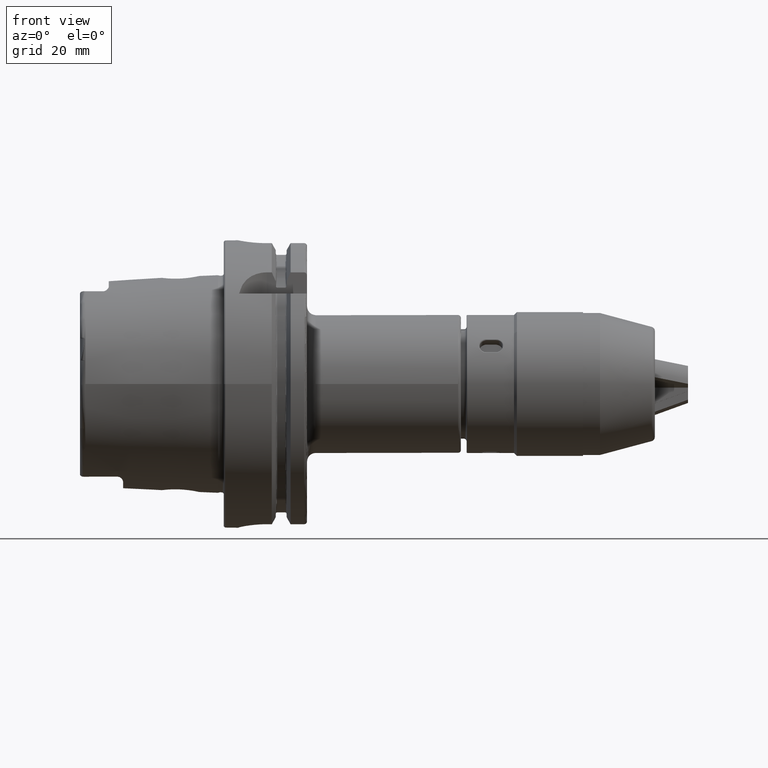
[diagram: clean part render]
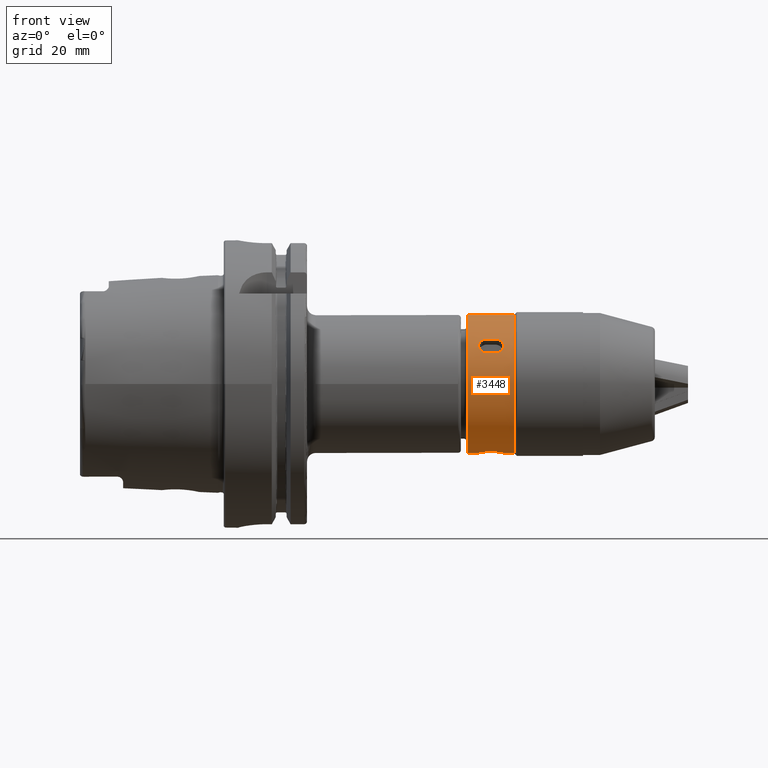
[diagram: same view with one face highlighted and labeled with its STEP entity id]
A machine part, front view. The second image highlights one B-rep face of the part: STEP entity #3448.
In plain terms, the highlighted cylindrical surface (bore or boss wall) has radius 24 mm, axis along (1, -0, -0).
Its self-contained STEP definition (entity closure, byte-faithful):
#140=B_SPLINE_CURVE_WITH_KNOTS('',3,(#6761,#6762,#6763,#6764,#6765,#6766,
#6767,#6768,#6769,#6770,#6771,#6772,#6773,#6774,#6775,#6776,#6777,#6778),
 .UNSPECIFIED.,.F.,.F.,(4,2,2,2,2,2,2,2,4),(0.00440892581885731,0.00495953149996009,
0.00551013718106286,0.00606074286216564,0.00661134854326842,0.0071619542243712,
0.00771255990547397,0.00826316558657675,0.00881377126767952),
 .UNSPECIFIED.);
#141=B_SPLINE_CURVE_WITH_KNOTS('',3,(#6780,#6781,#6782,#6783,#6784,#6785,
#6786,#6787,#6788,#6789,#6790,#6791,#6792,#6793,#6794,#6795,#6796,#6797,
#6798,#6799,#6800,#6801,#6802,#6803,#6804,#6805,#6806,#6807,#6808,#6809,
#6810,#6811,#6812,#6813,#6814,#6815,#6816,#6817,#6818,#6819,#6820,#6821,
#6822,#6823,#6824,#6825,#6826,#6827,#6828,#6829,#6830,#6831,#6832,#6833,
#6834,#6835,#6836,#6837,#6838,#6839,#6840),.UNSPECIFIED.,.F.,.F.,(4,3,3,
3,3,3,3,3,3,3,3,3,3,3,3,3,3,3,3,3,4),(0.,0.000547517435391667,0.000551115727357164,
0.000946703184153695,0.00109552508824886,0.00110223145471433,0.00164452387624054,
0.00165334718207149,0.00207315003302939,0.00219472326330774,0.00220446290942865,
0.00258200978068174,0.00274626147636323,0.00275557863678582,0.0031373182863236,
0.00329900945385223,0.00330669436414298,0.00385271726613962,0.00385781009150015,
0.00440688062733961,0.00440892581885732),.UNSPECIFIED.);
#142=B_SPLINE_CURVE_WITH_KNOTS('',3,(#6841,#6842,#6843,#6844,#6845,#6846,
#6847,#6848,#6849,#6850,#6851,#6852,#6853,#6854,#6855,#6856,#6857,#6858),
 .UNSPECIFIED.,.F.,.F.,(4,2,2,2,2,2,2,2,4),(0.00440892581885732,0.00495953149996009,
0.00551013718106287,0.00606074286216565,0.00661134854326842,0.0071619542243712,
0.00771255990547398,0.00826316558657676,0.00881377126767953),
 .UNSPECIFIED.);
#143=B_SPLINE_CURVE_WITH_KNOTS('',3,(#6859,#6860,#6861,#6862,#6863,#6864,
#6865,#6866,#6867,#6868,#6869,#6870,#6871,#6872,#6873,#6874,#6875,#6876,
#6877,#6878,#6879,#6880,#6881,#6882,#6883,#6884,#6885,#6886,#6887,#6888,
#6889,#6890,#6891,#6892,#6893,#6894,#6895,#6896,#6897,#6898,#6899,#6900,
#6901,#6902,#6903,#6904,#6905,#6906,#6907,#6908,#6909,#6910,#6911,#6912,
#6913,#6914,#6915,#6916,#6917,#6918,#6919),.UNSPECIFIED.,.F.,.F.,(4,3,3,
3,3,3,3,3,3,3,3,3,3,3,3,3,3,3,3,3,4),(0.,0.000547517435391673,0.000551115727357164,
0.000946703184115908,0.00109552508824886,0.00110223145471433,0.00164452387624054,
0.00165334718207149,0.00207315003280708,0.00219472326330774,0.00220446290942866,
0.00258200978115564,0.00274626147636323,0.00275557863678582,0.00313731828656481,
0.00329900945385223,0.00330669436414298,0.00385271726613962,0.00385781009150015,
0.00440688062733961,0.00440892581885731),.UNSPECIFIED.);
#144=B_SPLINE_CURVE_WITH_KNOTS('',3,(#6922,#6923,#6924,#6925,#6926,#6927,
#6928,#6929,#6930,#6931,#6932,#6933,#6934,#6935,#6936,#6937,#6938,#6939,
#6940,#6941,#6942,#6943,#6944,#6945,#6946,#6947,#6948,#6949,#6950,#6951,
#6952,#6953,#6954,#6955),.UNSPECIFIED.,.F.,.F.,(4,2,2,2,2,2,2,2,2,2,2,2,
2,2,2,2,4),(0.,0.000550860704229969,0.00110172140845994,0.00165258211268991,
0.00220344281691987,0.00275430352114984,0.00330516422537981,0.00385602492960978,
0.00440688563383975,0.00495774633806972,0.00550860704229969,0.00605946774652966,
0.00661032845075963,0.0071611891549896,0.00771204985921958,0.00826291056344955,
0.00881377126767953),.UNSPECIFIED.);
#145=B_SPLINE_CURVE_WITH_KNOTS('',3,(#6959,#6960,#6961,#6962,#6963,#6964,
#6965,#6966,#6967,#6968,#6969,#6970,#6971,#6972,#6973,#6974,#6975,#6976,
#6977,#6978,#6979,#6980,#6981,#6982,#6983,#6984,#6985,#6986,#6987,#6988,
#6989,#6990,#6991,#6992),.UNSPECIFIED.,.F.,.F.,(4,2,2,2,2,2,2,2,2,2,2,2,
2,2,2,2,4),(0.,0.00055086070422997,0.00110172140845994,0.00165258211268991,
0.00220344281691988,0.00275430352114985,0.00330516422537982,0.00385602492960979,
0.00440688563383976,0.00495774633806973,0.0055086070422997,0.00605946774652967,
0.00661032845075964,0.00716118915498961,0.00771204985921958,0.00826291056344956,
0.00881377126767953),.UNSPECIFIED.);
#146=B_SPLINE_CURVE_WITH_KNOTS('',3,(#6998,#6999,#7000,#7001,#7002,#7003,
#7004,#7005,#7006,#7007,#7008,#7009,#7010,#7011,#7012,#7013,#7014,#7015,
#7016,#7017,#7018,#7019,#7020,#7021,#7022,#7023,#7024,#7025,#7026,#7027,
#7028,#7029,#7030,#7031),.UNSPECIFIED.,.F.,.F.,(4,2,2,2,2,2,2,2,2,2,2,2,
2,2,2,2,4),(0.,0.00055086070422997,0.00110172140845994,0.00165258211268991,
0.00220344281691988,0.00275430352114985,0.00330516422537982,0.00385602492960979,
0.00440688563383976,0.00495774633806973,0.0055086070422997,0.00605946774652968,
0.00661032845075965,0.00716118915498962,0.00771204985921959,0.00826291056344956,
0.00881377126767953),.UNSPECIFIED.);
#147=B_SPLINE_CURVE_WITH_KNOTS('',3,(#7034,#7035,#7036,#7037,#7038,#7039,
#7040,#7041,#7042,#7043,#7044,#7045,#7046,#7047,#7048,#7049,#7050,#7051,
#7052,#7053,#7054,#7055,#7056,#7057,#7058,#7059,#7060,#7061,#7062,#7063,
#7064,#7065,#7066,#7067),.UNSPECIFIED.,.F.,.F.,(4,2,2,2,2,2,2,2,2,2,2,2,
2,2,2,2,4),(0.,0.00055086070422997,0.00110172140845994,0.00165258211268991,
0.00220344281691988,0.00275430352114985,0.00330516422537982,0.00385602492960979,
0.00440688563383976,0.00495774633806973,0.0055086070422997,0.00605946774652967,
0.00661032845075964,0.00716118915498961,0.00771204985921958,0.00826291056344955,
0.00881377126767952),.UNSPECIFIED.);
#201=FACE_BOUND('',#1170,.T.);
#202=FACE_BOUND('',#1171,.T.);
#203=FACE_BOUND('',#1172,.T.);
#407=LINE('',#6717,#635);
#410=LINE('',#6735,#638);
#413=LINE('',#6759,#641);
#414=LINE('',#6957,#642);
#415=LINE('',#6993,#643);
#416=LINE('',#6996,#644);
#417=LINE('',#7033,#645);
#635=VECTOR('',#4798,1000.);
#638=VECTOR('',#4815,1000.);
#641=VECTOR('',#4846,24.);
#642=VECTOR('',#4847,1000.);
#643=VECTOR('',#4848,1000.);
#644=VECTOR('',#4849,1000.);
#645=VECTOR('',#4850,1000.);
#795=CYLINDRICAL_SURFACE('',#4000,24.);
#949=FACE_OUTER_BOUND('',#1169,.T.);
#1169=EDGE_LOOP('',(#2960,#2961,#2962,#2963));
#1170=EDGE_LOOP('',(#2964,#2965,#2966,#2967,#2968,#2969));
#1171=EDGE_LOOP('',(#2970,#2971,#2972,#2973));
#1172=EDGE_LOOP('',(#2974,#2975,#2976,#2977));
#1404=CIRCLE('',#3997,24.);
#1407=CIRCLE('',#4001,24.);
#1645=VERTEX_POINT('',#6714);
#1646=VERTEX_POINT('',#6716);
#1650=VERTEX_POINT('',#6725);
#1654=VERTEX_POINT('',#6733);
#1659=VERTEX_POINT('',#6751);
#1661=VERTEX_POINT('',#6757);
#1662=VERTEX_POINT('',#6760);
#1663=VERTEX_POINT('',#6779);
#1664=VERTEX_POINT('',#6920);
#1665=VERTEX_POINT('',#6921);
#1666=VERTEX_POINT('',#6956);
#1667=VERTEX_POINT('',#6958);
#1668=VERTEX_POINT('',#6994);
#1669=VERTEX_POINT('',#6995);
#1670=VERTEX_POINT('',#6997);
#1671=VERTEX_POINT('',#7032);
#2091=EDGE_CURVE('',#1646,#1645,#407,.T.);
#2100=EDGE_CURVE('',#1650,#1654,#410,.T.);
#2108=EDGE_CURVE('',#1659,#1659,#1404,.T.);
#2111=EDGE_CURVE('',#1661,#1661,#1407,.T.);
#2112=EDGE_CURVE('',#1661,#1659,#413,.T.);
#2113=EDGE_CURVE('',#1662,#1650,#140,.T.);
#2114=EDGE_CURVE('',#1654,#1663,#141,.T.);
#2115=EDGE_CURVE('',#1663,#1646,#142,.T.);
#2116=EDGE_CURVE('',#1645,#1662,#143,.T.);
#2117=EDGE_CURVE('',#1664,#1665,#144,.T.);
#2118=EDGE_CURVE('',#1665,#1666,#414,.T.);
#2119=EDGE_CURVE('',#1666,#1667,#145,.T.);
#2120=EDGE_CURVE('',#1667,#1664,#415,.T.);
#2121=EDGE_CURVE('',#1668,#1669,#416,.T.);
#2122=EDGE_CURVE('',#1669,#1670,#146,.T.);
#2123=EDGE_CURVE('',#1670,#1671,#417,.T.);
#2124=EDGE_CURVE('',#1671,#1668,#147,.T.);
#2960=ORIENTED_EDGE('',*,*,#2111,.F.);
#2961=ORIENTED_EDGE('',*,*,#2112,.T.);
#2962=ORIENTED_EDGE('',*,*,#2108,.T.);
#2963=ORIENTED_EDGE('',*,*,#2112,.F.);
#2964=ORIENTED_EDGE('',*,*,#2113,.T.);
#2965=ORIENTED_EDGE('',*,*,#2100,.T.);
#2966=ORIENTED_EDGE('',*,*,#2114,.T.);
#2967=ORIENTED_EDGE('',*,*,#2115,.T.);
#2968=ORIENTED_EDGE('',*,*,#2091,.T.);
#2969=ORIENTED_EDGE('',*,*,#2116,.T.);
#2970=ORIENTED_EDGE('',*,*,#2117,.T.);
#2971=ORIENTED_EDGE('',*,*,#2118,.T.);
#2972=ORIENTED_EDGE('',*,*,#2119,.T.);
#2973=ORIENTED_EDGE('',*,*,#2120,.T.);
#2974=ORIENTED_EDGE('',*,*,#2121,.T.);
#2975=ORIENTED_EDGE('',*,*,#2122,.T.);
#2976=ORIENTED_EDGE('',*,*,#2123,.T.);
#2977=ORIENTED_EDGE('',*,*,#2124,.T.);
#3448=ADVANCED_FACE('',(#949,#201,#202,#203),#795,.T.);
#3997=AXIS2_PLACEMENT_3D('',#6752,#4836,#4837);
#4000=AXIS2_PLACEMENT_3D('',#6756,#4842,#4843);
#4001=AXIS2_PLACEMENT_3D('',#6758,#4844,#4845);
#4798=DIRECTION('',(0.,-1.,0.));
#4815=DIRECTION('',(0.,1.,0.));
#4836=DIRECTION('center_axis',(0.,1.,0.));
#4837=DIRECTION('ref_axis',(0.,0.,1.));
#4842=DIRECTION('center_axis',(0.,1.,0.));
#4843=DIRECTION('ref_axis',(0.,0.,1.));
#4844=DIRECTION('center_axis',(0.,1.,0.));
#4845=DIRECTION('ref_axis',(0.,0.,1.));
#4846=DIRECTION('',(0.,-1.,0.));
#4847=DIRECTION('',(0.,-1.,0.));
#4848=DIRECTION('',(0.,1.,0.));
#4849=DIRECTION('',(0.,1.,0.));
#4850=DIRECTION('',(0.,-1.,0.));
#6714=CARTESIAN_POINT('',(2.83544303797468,-21.,23.8319168926547));
#6716=CARTESIAN_POINT('',(2.83544303797468,-18.,23.8319168926547));
#6717=CARTESIAN_POINT('',(2.83544303797467,0.,23.8319168926547));
#6725=CARTESIAN_POINT('',(-2.83544303797468,-21.,23.8319168926547));
#6733=CARTESIAN_POINT('',(-2.83544303797468,-18.,23.8319168926547));
#6735=CARTESIAN_POINT('',(-2.83544303797468,0.,23.8319168926547));
#6751=CARTESIAN_POINT('',(-2.93915231795365E-15,-27.7,-24.));
#6752=CARTESIAN_POINT('Origin',(0.,-27.7,0.));
#6756=CARTESIAN_POINT('Origin',(0.,0.,0.));
#6757=CARTESIAN_POINT('',(-2.93915231795365E-15,-11.5,-24.));
#6758=CARTESIAN_POINT('Origin',(0.,-11.5,0.));
#6759=CARTESIAN_POINT('',(-2.93915231795365E-15,0.,-24.));
#6760=CARTESIAN_POINT('',(7.05606588451342E-13,-23.799999991578,23.999999998587));
#6761=CARTESIAN_POINT('Ctrl Pts',(7.01516389887666E-13,-23.8,24.));
#6762=CARTESIAN_POINT('Ctrl Pts',(-0.183866423147814,-23.8,24.));
#6763=CARTESIAN_POINT('Ctrl Pts',(-0.370567700895003,-23.7819444709288,
23.9978203234072));
#6764=CARTESIAN_POINT('Ctrl Pts',(-0.732138923881349,-23.7111645898068,
23.989511735165));
#6765=CARTESIAN_POINT('Ctrl Pts',(-0.908042239445636,-23.6588119425311,
23.9834266527617));
#6766=CARTESIAN_POINT('Ctrl Pts',(-1.25001008675534,-23.5198473644258,23.9680364131071));
#6767=CARTESIAN_POINT('Ctrl Pts',(-1.41540307877182,-23.4329940637592,23.9587198298162));
#6768=CARTESIAN_POINT('Ctrl Pts',(-1.72213313630015,-23.2318137233607,23.9386273461926));
#6769=CARTESIAN_POINT('Ctrl Pts',(-1.86538163369627,-23.1168127133124,23.9277679135411));
#6770=CARTESIAN_POINT('Ctrl Pts',(-2.13073502481787,-22.8565712615983,23.905599641457));
#6771=CARTESIAN_POINT('Ctrl Pts',(-2.2485377543457,-22.7155269911367,23.8946615713535));
#6772=CARTESIAN_POINT('Ctrl Pts',(-2.45513094641273,-22.4125964529844,23.8743189573693));
#6773=CARTESIAN_POINT('Ctrl Pts',(-2.54471445470924,-22.2486989218002,23.8648204775907));
#6774=CARTESIAN_POINT('Ctrl Pts',(-2.68846341365019,-21.9086661555868,23.8490543325538));
#6775=CARTESIAN_POINT('Ctrl Pts',(-2.74277053012392,-21.733460675799,23.8427889102428));
#6776=CARTESIAN_POINT('Ctrl Pts',(-2.81638520794912,-21.3726876007205,23.8342054107067));
#6777=CARTESIAN_POINT('Ctrl Pts',(-2.83544303797468,-21.1862564637837,23.8319168926547));
#6778=CARTESIAN_POINT('Ctrl Pts',(-2.83544303797468,-21.,23.8319168926547));
#6779=CARTESIAN_POINT('',(-7.05148970858741E-13,-15.200000008422,23.999999998587));
#6780=CARTESIAN_POINT('Ctrl Pts',(-2.83544303797468,-18.,23.8319168926547));
#6781=CARTESIAN_POINT('Ctrl Pts',(-2.83544303386902,-17.8147869842147,23.8319168931432));
#6782=CARTESIAN_POINT('Ctrl Pts',(-2.81700829443057,-17.6327577279024,23.8341305723499));
#6783=CARTESIAN_POINT('Ctrl Pts',(-2.78097769906552,-17.4538417625587,23.8383338980924));
#6784=CARTESIAN_POINT('Ctrl Pts',(-2.78074090550712,-17.4526659244228,23.8383615224058));
#6785=CARTESIAN_POINT('Ctrl Pts',(-2.78050331379216,-17.4514901396681,23.8383892369384));
#6786=CARTESIAN_POINT('Ctrl Pts',(-2.78026492449431,-17.450314410365,23.8384170415226));
#6787=CARTESIAN_POINT('Ctrl Pts',(-2.75405698557054,-17.3210575936918,23.8414738098084));
#6788=CARTESIAN_POINT('Ctrl Pts',(-2.71818748151992,-17.1924061478664,23.845621440319));
#6789=CARTESIAN_POINT('Ctrl Pts',(-2.67342395015235,-17.0671798365421,23.8506370322333));
#6790=CARTESIAN_POINT('Ctrl Pts',(-2.65658369433106,-17.0200690958604,23.8525239220374));
#6791=CARTESIAN_POINT('Ctrl Pts',(-2.63848513916586,-16.9734429159499,23.854533609194));
#6792=CARTESIAN_POINT('Ctrl Pts',(-2.61917075444562,-16.927450312297,23.8566540939573));
#6793=CARTESIAN_POINT('Ctrl Pts',(-2.6183003896779,-16.9253777460529,23.8567496494334));
#6794=CARTESIAN_POINT('Ctrl Pts',(-2.61742765795449,-16.9233065167706,23.8568454188438));
#6795=CARTESIAN_POINT('Ctrl Pts',(-2.6165525598994,-16.9212366245398,23.8569414011673));
#6796=CARTESIAN_POINT('Ctrl Pts',(-2.54579009175679,-16.7538603148966,23.8647027555298));
#6797=CARTESIAN_POINT('Ctrl Pts',(-2.45952880693523,-16.5951857155035,23.8738584106844));
#6798=CARTESIAN_POINT('Ctrl Pts',(-2.35805465662742,-16.4451093816987,23.8838769514742));
#6799=CARTESIAN_POINT('Ctrl Pts',(-2.35640363325597,-16.4426675821482,23.884039956978));
#6800=CARTESIAN_POINT('Ctrl Pts',(-2.35474832575485,-16.4402279434639,23.8842032087297));
#6801=CARTESIAN_POINT('Ctrl Pts',(-2.35308875869436,-16.4377904933369,23.8843667019509));
#6802=CARTESIAN_POINT('Ctrl Pts',(-2.27412844646043,-16.3218193899865,23.8921455233685));
#6803=CARTESIAN_POINT('Ctrl Pts',(-2.18548056734201,-16.2107615826124,23.900475078787));
#6804=CARTESIAN_POINT('Ctrl Pts',(-2.08977739681336,-16.1076154886989,23.9088426238792));
#6805=CARTESIAN_POINT('Ctrl Pts',(-2.06206214056272,-16.0777447915395,23.9112658315445));
#6806=CARTESIAN_POINT('Ctrl Pts',(-2.03375519507913,-16.0485372980449,23.913692251355));
#6807=CARTESIAN_POINT('Ctrl Pts',(-2.00492043735027,-16.0200649665045,23.9161095088488));
#6808=CARTESIAN_POINT('Ctrl Pts',(-2.00261038656344,-16.0177839509158,23.916303163591));
#6809=CARTESIAN_POINT('Ctrl Pts',(-2.00029665580118,-16.0155071100017,23.9164967932039));
#6810=CARTESIAN_POINT('Ctrl Pts',(-1.99797924423389,-16.0132344454203,23.9166903942008));
#6811=CARTESIAN_POINT('Ctrl Pts',(-1.90814728568287,-15.9251370554853,23.924195127919));
#6812=CARTESIAN_POINT('Ctrl Pts',(-1.81281013217366,-15.8433287430144,23.9316548399621));
#6813=CARTESIAN_POINT('Ctrl Pts',(-1.71180767483478,-15.7678206627238,23.9388759933496));
#6814=CARTESIAN_POINT('Ctrl Pts',(-1.66786657467192,-15.7349708865245,23.9420175547794));
#6815=CARTESIAN_POINT('Ctrl Pts',(-1.62285277948165,-15.7033140441285,23.9451139783465));
#6816=CARTESIAN_POINT('Ctrl Pts',(-1.57675107727872,-15.6728533876945,23.948149323905));
#6817=CARTESIAN_POINT('Ctrl Pts',(-1.57413596299697,-15.6711255101137,23.9483215035674));
#6818=CARTESIAN_POINT('Ctrl Pts',(-1.57151804458181,-15.6694020399594,23.9484934309083));
#6819=CARTESIAN_POINT('Ctrl Pts',(-1.56889734051203,-15.6676829840073,23.9486651026328));
#6820=CARTESIAN_POINT('Ctrl Pts',(-1.46152271049975,-15.5972503857761,23.9556987803805));
#6821=CARTESIAN_POINT('Ctrl Pts',(-1.34961846755318,-15.5343208980356,23.9622939549729));
#6822=CARTESIAN_POINT('Ctrl Pts',(-1.23448601668462,-15.4793222743515,23.9682267412182));
#6823=CARTESIAN_POINT('Ctrl Pts',(-1.18572005689,-15.4560268380857,23.9707396558077));
#6824=CARTESIAN_POINT('Ctrl Pts',(-1.13637442864883,-15.434154679546,23.9731337358028));
#6825=CARTESIAN_POINT('Ctrl Pts',(-1.08654614664666,-15.4137403418957,23.9753919148576));
#6826=CARTESIAN_POINT('Ctrl Pts',(-1.08417789188678,-15.4127700826299,23.9754992423247));
#6827=CARTESIAN_POINT('Ctrl Pts',(-1.08180805991911,-15.4118029181438,23.9756062844196));
#6828=CARTESIAN_POINT('Ctrl Pts',(-1.07943666106762,-15.4108388528851,23.9757130397105));
#6829=CARTESIAN_POINT('Ctrl Pts',(-0.910945678910019,-15.3423407585211,
23.9832981424007));
#6830=CARTESIAN_POINT('Ctrl Pts',(-0.734549426677008,-15.2894979438591,
23.9894348068281));
#6831=CARTESIAN_POINT('Ctrl Pts',(-0.554194616618907,-15.254004734812,23.9936005702921));
#6832=CARTESIAN_POINT('Ctrl Pts',(-0.552512424265438,-15.253673685117,23.9936394249001));
#6833=CARTESIAN_POINT('Ctrl Pts',(-0.550830155028188,-15.253344172514,23.9936781042938));
#6834=CARTESIAN_POINT('Ctrl Pts',(-0.549147808944167,-15.2530161965982,
23.9937166084259));
#6835=CARTESIAN_POINT('Ctrl Pts',(-0.367769772112267,-15.2176562737546,
23.9978678374422));
#6836=CARTESIAN_POINT('Ctrl Pts',(-0.185381556290337,-15.2001345411298,
23.9999842623105));
#6837=CARTESIAN_POINT('Ctrl Pts',(-0.00204876506993331,-15.2000007641736,
23.9999999125534));
#6838=CARTESIAN_POINT('Ctrl Pts',(-0.00136588255293883,-15.2000002658779,
23.9999999708478));
#6839=CARTESIAN_POINT('Ctrl Pts',(-0.000682960710411145,-15.2000000167815,
23.999999999051));
#6840=CARTESIAN_POINT('Ctrl Pts',(-7.08884340117066E-13,-15.200000016844,
23.9999999971741));
#6841=CARTESIAN_POINT('Ctrl Pts',(-7.01415390534001E-13,-15.2,24.));
#6842=CARTESIAN_POINT('Ctrl Pts',(0.183866423147814,-15.1999999999999,24.));
#6843=CARTESIAN_POINT('Ctrl Pts',(0.370567700895012,-15.2180555290712,23.9978203234072));
#6844=CARTESIAN_POINT('Ctrl Pts',(0.732138923881357,-15.2888354101932,23.989511735165));
#6845=CARTESIAN_POINT('Ctrl Pts',(0.908042239445644,-15.3411880574688,23.9834266527617));
#6846=CARTESIAN_POINT('Ctrl Pts',(1.25001008675535,-15.4801526355742,23.9680364131071));
#6847=CARTESIAN_POINT('Ctrl Pts',(1.41540307877184,-15.5670059362408,23.9587198298161));
#6848=CARTESIAN_POINT('Ctrl Pts',(1.72213313630017,-15.7681862766393,23.9386273461926));
#6849=CARTESIAN_POINT('Ctrl Pts',(1.86538163369629,-15.8831872866876,23.9277679135411));
#6850=CARTESIAN_POINT('Ctrl Pts',(2.13073502481788,-16.1434287384017,23.905599641457));
#6851=CARTESIAN_POINT('Ctrl Pts',(2.24853775434571,-16.2844730088633,23.8946615713535));
#6852=CARTESIAN_POINT('Ctrl Pts',(2.45513094641274,-16.5874035470155,23.8743189573693));
#6853=CARTESIAN_POINT('Ctrl Pts',(2.54471445470926,-16.7513010781998,23.8648204775907));
#6854=CARTESIAN_POINT('Ctrl Pts',(2.68846341365019,-17.0913338444132,23.8490543325538));
#6855=CARTESIAN_POINT('Ctrl Pts',(2.74277053012393,-17.266539324201,23.8427889102428));
#6856=CARTESIAN_POINT('Ctrl Pts',(2.81638520794912,-17.6273123992795,23.8342054107067));
#6857=CARTESIAN_POINT('Ctrl Pts',(2.83544303797468,-17.8137435362163,23.8319168926547));
#6858=CARTESIAN_POINT('Ctrl Pts',(2.83544303797468,-18.,23.8319168926547));
#6859=CARTESIAN_POINT('Ctrl Pts',(2.83544303797468,-21.,23.8319168926547));
#6860=CARTESIAN_POINT('Ctrl Pts',(2.83544303386898,-21.1852130157853,23.8319168931432));
#6861=CARTESIAN_POINT('Ctrl Pts',(2.81700829443057,-21.3672422720975,23.8341305723499));
#6862=CARTESIAN_POINT('Ctrl Pts',(2.78097769906551,-21.5461582374413,23.8383338980924));
#6863=CARTESIAN_POINT('Ctrl Pts',(2.7807409055071,-21.5473340755772,23.8383615224058));
#6864=CARTESIAN_POINT('Ctrl Pts',(2.78050331379214,-21.5485098603319,23.8383892369384));
#6865=CARTESIAN_POINT('Ctrl Pts',(2.78026492449429,-21.549685589635,23.8384170415226));
#6866=CARTESIAN_POINT('Ctrl Pts',(2.75405698557301,-21.6789424062958,23.8414738098081));
#6867=CARTESIAN_POINT('Ctrl Pts',(2.71818748152677,-21.807593852109,23.8456214403182));
#6868=CARTESIAN_POINT('Ctrl Pts',(2.67342395016519,-21.932820163422,23.8506370322319));
#6869=CARTESIAN_POINT('Ctrl Pts',(2.65658369434027,-21.979930904116,23.8525239220364));
#6870=CARTESIAN_POINT('Ctrl Pts',(2.63848513917078,-22.0265570840384,23.8545336091934));
#6871=CARTESIAN_POINT('Ctrl Pts',(2.61917075444562,-22.0725496877031,23.8566540939573));
#6872=CARTESIAN_POINT('Ctrl Pts',(2.61830038967791,-22.0746222539471,23.8567496494334));
#6873=CARTESIAN_POINT('Ctrl Pts',(2.6174276579545,-22.0766934832294,23.8568454188438));
#6874=CARTESIAN_POINT('Ctrl Pts',(2.61655255989941,-22.0787633754602,23.8569414011673));
#6875=CARTESIAN_POINT('Ctrl Pts',(2.54579009175678,-22.2461396851034,23.8647027555298));
#6876=CARTESIAN_POINT('Ctrl Pts',(2.45952880693522,-22.4048142844965,23.8738584106844));
#6877=CARTESIAN_POINT('Ctrl Pts',(2.35805465662741,-22.5548906183013,23.8838769514742));
#6878=CARTESIAN_POINT('Ctrl Pts',(2.35640363325596,-22.5573324178518,23.884039956978));
#6879=CARTESIAN_POINT('Ctrl Pts',(2.35474832575483,-22.5597720565361,23.8842032087297));
#6880=CARTESIAN_POINT('Ctrl Pts',(2.35308875869434,-22.5622095066631,23.8843667019509));
#6881=CARTESIAN_POINT('Ctrl Pts',(2.27412844650223,-22.6781806099521,23.8921455233644));
#6882=CARTESIAN_POINT('Ctrl Pts',(2.18548056743584,-22.7892384172699,23.9004750787782));
#6883=CARTESIAN_POINT('Ctrl Pts',(2.08977739696533,-22.8923845111371,23.9088426238659));
#6884=CARTESIAN_POINT('Ctrl Pts',(2.06206214066616,-22.9222552083536,23.9112658315356));
#6885=CARTESIAN_POINT('Ctrl Pts',(2.03375519513178,-22.951462701903,23.9136922513506));
#6886=CARTESIAN_POINT('Ctrl Pts',(2.00492043735019,-22.9799350334954,23.9161095088488));
#6887=CARTESIAN_POINT('Ctrl Pts',(2.00261038656337,-22.9822160490841,23.916303163591));
#6888=CARTESIAN_POINT('Ctrl Pts',(2.00029665580111,-22.9844928899982,23.9164967932039));
#6889=CARTESIAN_POINT('Ctrl Pts',(1.99797924423383,-22.9867655545797,23.9166903942008));
#6890=CARTESIAN_POINT('Ctrl Pts',(1.90814728557008,-23.0748629446252,23.9241951279284));
#6891=CARTESIAN_POINT('Ctrl Pts',(1.81281013193436,-23.156671257191,23.9316548399808));
#6892=CARTESIAN_POINT('Ctrl Pts',(1.71180767445447,-23.2321793375606,23.9388759933768));
#6893=CARTESIAN_POINT('Ctrl Pts',(1.6678665744122,-23.2650291136581,23.9420175547973));
#6894=CARTESIAN_POINT('Ctrl Pts',(1.62285277934867,-23.2966859559594,23.9451139783553));
#6895=CARTESIAN_POINT('Ctrl Pts',(1.57675107727876,-23.3271466123056,23.948149323905));
#6896=CARTESIAN_POINT('Ctrl Pts',(1.57413596299701,-23.3288744898864,23.9483215035674));
#6897=CARTESIAN_POINT('Ctrl Pts',(1.57151804458185,-23.3305979600407,23.9484934309083));
#6898=CARTESIAN_POINT('Ctrl Pts',(1.56889734051207,-23.3323170159928,23.9486651026328));
#6899=CARTESIAN_POINT('Ctrl Pts',(1.46152271043198,-23.4027496142685,23.955698780385));
#6900=CARTESIAN_POINT('Ctrl Pts',(1.3496184674118,-23.465679102044,23.9622939549812));
#6901=CARTESIAN_POINT('Ctrl Pts',(1.23448601646637,-23.5206777257528,23.9682267412295));
#6902=CARTESIAN_POINT('Ctrl Pts',(1.18572005674276,-23.5439731619796,23.9707396558148));
#6903=CARTESIAN_POINT('Ctrl Pts',(1.13637442857448,-23.5658453204844,23.9731337358062));
#6904=CARTESIAN_POINT('Ctrl Pts',(1.08654614664664,-23.5862596581043,23.9753919148576));
#6905=CARTESIAN_POINT('Ctrl Pts',(1.08417789188677,-23.5872299173701,23.9754992423247));
#6906=CARTESIAN_POINT('Ctrl Pts',(1.0818080599191,-23.5881970818562,23.9756062844196));
#6907=CARTESIAN_POINT('Ctrl Pts',(1.07943666106761,-23.5891611471149,23.9757130397105));
#6908=CARTESIAN_POINT('Ctrl Pts',(0.910945678910009,-23.6576592414788,23.9832981424007));
#6909=CARTESIAN_POINT('Ctrl Pts',(0.734549426677008,-23.7105020561409,23.9894348068281));
#6910=CARTESIAN_POINT('Ctrl Pts',(0.554194616618906,-23.745995265188,23.9936005702921));
#6911=CARTESIAN_POINT('Ctrl Pts',(0.552512424265437,-23.746326314883,23.9936394249001));
#6912=CARTESIAN_POINT('Ctrl Pts',(0.550830155028188,-23.746655827486,23.9936781042938));
#6913=CARTESIAN_POINT('Ctrl Pts',(0.549147808944167,-23.7469838034018,23.9937166084259));
#6914=CARTESIAN_POINT('Ctrl Pts',(0.367769772112266,-23.7823437262454,23.9978678374422));
#6915=CARTESIAN_POINT('Ctrl Pts',(0.185381556290335,-23.7998654588701,23.9999842623105));
#6916=CARTESIAN_POINT('Ctrl Pts',(0.00204876506993321,-23.7999992358264,
23.9999999125534));
#6917=CARTESIAN_POINT('Ctrl Pts',(0.00136588255293928,-23.7999997341221,
23.9999999708478));
#6918=CARTESIAN_POINT('Ctrl Pts',(0.000682960710411387,-23.7999999832185,
23.999999999051));
#6919=CARTESIAN_POINT('Ctrl Pts',(7.09703996959466E-13,-23.799999983156,
23.9999999971741));
#6920=CARTESIAN_POINT('',(-19.2213239309311,-18.,-14.3715241481972));
#6921=CARTESIAN_POINT('',(-22.0567669689058,-18.,-9.46039274445765));
#6922=CARTESIAN_POINT('Ctrl Pts',(-19.2213239309311,-18.,-14.3715241481972));
#6923=CARTESIAN_POINT('Ctrl Pts',(-19.2213239309311,-17.8136560304513,-14.3715241481972));
#6924=CARTESIAN_POINT('Ctrl Pts',(-19.2325881566529,-17.6305592412717,-14.3564933534857));
#6925=CARTESIAN_POINT('Ctrl Pts',(-19.2764329963469,-17.2705687087131,-14.2975690083823));
#6926=CARTESIAN_POINT('Ctrl Pts',(-19.3095695180609,-17.0917451495731,-14.2529207512521));
#6927=CARTESIAN_POINT('Ctrl Pts',(-19.3950727582876,-16.7516711073448,-14.1363495151694));
#6928=CARTESIAN_POINT('Ctrl Pts',(-19.4470498085794,-16.5906257570916,-14.0649593989067));
#6929=CARTESIAN_POINT('Ctrl Pts',(-19.5682866905241,-16.2862163414227,-13.8957901951533));
#6930=CARTESIAN_POINT('Ctrl Pts',(-19.6380572327326,-16.1425332414746,-13.7972459664863));
#6931=CARTESIAN_POINT('Ctrl Pts',(-19.7880507256921,-15.8853600260847,-13.5812494496362));
#6932=CARTESIAN_POINT('Ctrl Pts',(-19.868867203115,-15.7700886682621,-13.4629940652604));
#6933=CARTESIAN_POINT('Ctrl Pts',(-20.041341247438,-15.5666864050443,-13.2048753928235));
#6934=CARTESIAN_POINT('Ctrl Pts',(-20.1314866883779,-15.4806109164923,-13.0672179122294));
#6935=CARTESIAN_POINT('Ctrl Pts',(-20.3147023170186,-15.342216459445,-12.7805246379382));
#6936=CARTESIAN_POINT('Ctrl Pts',(-20.4090744807684,-15.2889513171987,-12.6294420665645));
#6937=CARTESIAN_POINT('Ctrl Pts',(-20.5982743011637,-15.217768945454,-12.3184505473813));
#6938=CARTESIAN_POINT('Ctrl Pts',(-20.6916020027325,-15.2001316595995,-12.1610625380498));
#6939=CARTESIAN_POINT('Ctrl Pts',(-20.875573402228,-15.199869795203,-11.8424773853291));
#6940=CARTESIAN_POINT('Ctrl Pts',(-20.9670944992277,-15.2178065637199,-11.6796271652275));
#6941=CARTESIAN_POINT('Ctrl Pts',(-21.140818743924,-15.2883970126859,-11.3621531979998));
#6942=CARTESIAN_POINT('Ctrl Pts',(-21.22356252294,-15.3406731564613,-11.2066821586373));
#6943=CARTESIAN_POINT('Ctrl Pts',(-21.3813342447892,-15.4795097859844,-10.90265458879));
#6944=CARTESIAN_POINT('Ctrl Pts',(-21.4560307369836,-15.5663281795442,-10.7546456527446));
#6945=CARTESIAN_POINT('Ctrl Pts',(-21.5921119955651,-15.767466796234,-10.4787574489278));
#6946=CARTESIAN_POINT('Ctrl Pts',(-21.6543834945361,-15.882460571326,-10.3491752497525));
#6947=CARTESIAN_POINT('Ctrl Pts',(-21.7679554567438,-16.1427093410021,-10.1081090274959));
#6948=CARTESIAN_POINT('Ctrl Pts',(-21.8174358944398,-16.2838009417598,-10.0005141392266));
#6949=CARTESIAN_POINT('Ctrl Pts',(-21.9031918740049,-16.586812966113,-9.81126789907322));
#6950=CARTESIAN_POINT('Ctrl Pts',(-21.939789772259,-16.7507595797523,-9.72886748054431));
#6951=CARTESIAN_POINT('Ctrl Pts',(-21.9980650264085,-17.0909304153359,-9.59637289807034));
#6952=CARTESIAN_POINT('Ctrl Pts',(-22.019812339771,-17.2662099781707,-9.5461636386047));
#6953=CARTESIAN_POINT('Ctrl Pts',(-22.0492129630639,-17.6271404560286,-9.47805799745946));
#6954=CARTESIAN_POINT('Ctrl Pts',(-22.0567669689058,-17.8136572681165,-9.46039274445765));
#6955=CARTESIAN_POINT('Ctrl Pts',(-22.0567669689058,-18.,-9.46039274445765));
#6956=CARTESIAN_POINT('',(-22.0567669689058,-21.,-9.46039274445765));
#6957=CARTESIAN_POINT('',(-22.0567669689058,0.,-9.46039274445766));
#6958=CARTESIAN_POINT('',(-19.2213239309311,-21.,-14.3715241481972));
#6959=CARTESIAN_POINT('Ctrl Pts',(-22.0567669689058,-21.,-9.46039274445765));
#6960=CARTESIAN_POINT('Ctrl Pts',(-22.0567669689058,-21.1863439695487,-9.46039274445766));
#6961=CARTESIAN_POINT('Ctrl Pts',(-22.0493820317074,-21.3694407587283,-9.47766324744252));
#6962=CARTESIAN_POINT('Ctrl Pts',(-22.0202744717935,-21.7294312912869,-9.54509616499405));
#6963=CARTESIAN_POINT('Ctrl Pts',(-21.998176207741,-21.908254850427,-9.59611736315659));
#6964=CARTESIAN_POINT('Ctrl Pts',(-21.9399741760562,-22.2483288926552,-9.72845095934008));
#6965=CARTESIAN_POINT('Ctrl Pts',(-21.9041370469395,-22.4093742429084,-9.80915946343794));
#6966=CARTESIAN_POINT('Ctrl Pts',(-21.8182506599234,-22.7137836585774,-9.99873828495438));
#6967=CARTESIAN_POINT('Ctrl Pts',(-21.7677941256057,-22.8574667585254,-10.1084334612763));
#6968=CARTESIAN_POINT('Ctrl Pts',(-21.6557324013643,-23.1146399739153,-10.3463298950065));
#6969=CARTESIAN_POINT('Ctrl Pts',(-21.593728473072,-23.2299113317379,-10.4754467096871));
#6970=CARTESIAN_POINT('Ctrl Pts',(-21.4564281677121,-23.4333135949557,-10.7538729497827));
#6971=CARTESIAN_POINT('Ctrl Pts',(-21.3822860129666,-23.5193890835077,-10.900769931969));
#6972=CARTESIAN_POINT('Ctrl Pts',(-21.2256101686566,-23.657783540555,-11.2027859578878));
#6973=CARTESIAN_POINT('Ctrl Pts',(-21.1419549056528,-23.7110486828013,-11.3600559347921));
#6974=CARTESIAN_POINT('Ctrl Pts',(-20.9672282598763,-23.782231054546,-11.6794035452375));
#6975=CARTESIAN_POINT('Ctrl Pts',(-20.8775900963285,-23.7998683404005,-11.8389217103386));
#6976=CARTESIAN_POINT('Ctrl Pts',(-20.6936729605516,-23.8001302047969,-12.1575381922319));
#6977=CARTESIAN_POINT('Ctrl Pts',(-20.5984010814316,-23.7821934362801,-12.3182228972666));
#6978=CARTESIAN_POINT('Ctrl Pts',(-20.4103226831203,-23.7116029873141,-12.6274094900407));
#6979=CARTESIAN_POINT('Ctrl Pts',(-20.3170527029876,-23.6593268435387,-12.7768032243549));
#6980=CARTESIAN_POINT('Ctrl Pts',(-20.1326429649736,-23.5204902140155,-13.0654513283988));
#6981=CARTESIAN_POINT('Ctrl Pts',(-20.0418117124684,-23.4336718204558,-13.2041448562355));
#6982=CARTESIAN_POINT('Ctrl Pts',(-19.8709261486493,-23.232533203766,-13.4599387850543));
#6983=CARTESIAN_POINT('Ctrl Pts',(-19.7898404217708,-23.117539428674,-13.5786585846827));
#6984=CARTESIAN_POINT('Ctrl Pts',(-19.6378569304061,-22.8572906589979,-13.7975479002405));
#6985=CARTESIAN_POINT('Ctrl Pts',(-19.5694172426955,-22.7161990582402,-13.8941966604102));
#6986=CARTESIAN_POINT('Ctrl Pts',(-19.4484031809345,-22.413187033887,-14.0630866373167));
#6987=CARTESIAN_POINT('Ctrl Pts',(-19.3953412743331,-22.2492404202477,-14.1359815561943));
#6988=CARTESIAN_POINT('Ctrl Pts',(-19.3097352271215,-21.9090695846641,-14.2526966979368));
#6989=CARTESIAN_POINT('Ctrl Pts',(-19.2771263896004,-21.7337900218293,-14.2966350535056));
#6990=CARTESIAN_POINT('Ctrl Pts',(-19.232845485874,-21.3728595439714,-14.356149560737));
#6991=CARTESIAN_POINT('Ctrl Pts',(-19.2213239309311,-21.1863427318835,-14.3715241481972));
#6992=CARTESIAN_POINT('Ctrl Pts',(-19.2213239309311,-21.,-14.3715241481972));
#6993=CARTESIAN_POINT('',(-19.2213239309311,0.,-14.3715241481972));
#6994=CARTESIAN_POINT('',(22.0567669689059,-21.,-9.46039274445735));
#6995=CARTESIAN_POINT('',(22.0567669689059,-18.,-9.46039274445735));
#6996=CARTESIAN_POINT('',(22.0567669689059,0.,-9.46039274445735));
#6997=CARTESIAN_POINT('',(19.2213239309313,-18.,-14.371524148197));
#6998=CARTESIAN_POINT('Ctrl Pts',(22.0567669689059,-18.,-9.46039274445735));
#6999=CARTESIAN_POINT('Ctrl Pts',(22.0567669689059,-17.8136560304512,-9.46039274445735));
#7000=CARTESIAN_POINT('Ctrl Pts',(22.0493820317075,-17.6305592412717,-9.47766324744221));
#7001=CARTESIAN_POINT('Ctrl Pts',(22.0202744717936,-17.2705687087131,-9.54509616499374));
#7002=CARTESIAN_POINT('Ctrl Pts',(21.9981762077412,-17.091745149573,-9.59611736315628));
#7003=CARTESIAN_POINT('Ctrl Pts',(21.9399741760564,-16.7516711073448,-9.72845095933977));
#7004=CARTESIAN_POINT('Ctrl Pts',(21.9041370469396,-16.5906257570916,-9.80915946343763));
#7005=CARTESIAN_POINT('Ctrl Pts',(21.8182506599235,-16.2862163414227,-9.99873828495407));
#7006=CARTESIAN_POINT('Ctrl Pts',(21.7677941256059,-16.1425332414746,-10.1084334612759));
#7007=CARTESIAN_POINT('Ctrl Pts',(21.6557324013644,-15.8853600260847,-10.3463298950062));
#7008=CARTESIAN_POINT('Ctrl Pts',(21.5937284730722,-15.7700886682621,-10.4754467096868));
#7009=CARTESIAN_POINT('Ctrl Pts',(21.4564281677122,-15.5666864050443,-10.7538729497824));
#7010=CARTESIAN_POINT('Ctrl Pts',(21.3822860129667,-15.4806109164923,-10.9007699319687));
#7011=CARTESIAN_POINT('Ctrl Pts',(21.2256101686568,-15.342216459445,-11.2027859578875));
#7012=CARTESIAN_POINT('Ctrl Pts',(21.1419549056529,-15.2889513171987,-11.3600559347918));
#7013=CARTESIAN_POINT('Ctrl Pts',(20.9672282598764,-15.217768945454,-11.6794035452372));
#7014=CARTESIAN_POINT('Ctrl Pts',(20.8775900963287,-15.2001316595995,-11.8389217103383));
#7015=CARTESIAN_POINT('Ctrl Pts',(20.6936729605518,-15.199869795203,-12.1575381922316));
#7016=CARTESIAN_POINT('Ctrl Pts',(20.5984010814317,-15.2178065637199,-12.3182228972664));
#7017=CARTESIAN_POINT('Ctrl Pts',(20.4103226831205,-15.2883970126859,-12.6274094900404));
#7018=CARTESIAN_POINT('Ctrl Pts',(20.3170527029878,-15.3406731564613,-12.7768032243546));
#7019=CARTESIAN_POINT('Ctrl Pts',(20.1326429649738,-15.4795097859844,-13.0654513283985));
#7020=CARTESIAN_POINT('Ctrl Pts',(20.0418117124686,-15.5663281795442,-13.2041448562352));
#7021=CARTESIAN_POINT('Ctrl Pts',(19.8709261486495,-15.767466796234,-13.4599387850541));
#7022=CARTESIAN_POINT('Ctrl Pts',(19.7898404217709,-15.882460571326,-13.5786585846824));
#7023=CARTESIAN_POINT('Ctrl Pts',(19.6378569304063,-16.1427093410021,-13.7975479002402));
#7024=CARTESIAN_POINT('Ctrl Pts',(19.5694172426957,-16.2838009417598,-13.8941966604099));
#7025=CARTESIAN_POINT('Ctrl Pts',(19.4484031809347,-16.586812966113,-14.0630866373165));
#7026=CARTESIAN_POINT('Ctrl Pts',(19.3953412743333,-16.7507595797523,-14.1359815561941));
#7027=CARTESIAN_POINT('Ctrl Pts',(19.3097352271217,-17.0909304153359,-14.2526966979365));
#7028=CARTESIAN_POINT('Ctrl Pts',(19.2771263896005,-17.2662099781707,-14.2966350535053));
#7029=CARTESIAN_POINT('Ctrl Pts',(19.2328454858742,-17.6271404560286,-14.3561495607367));
#7030=CARTESIAN_POINT('Ctrl Pts',(19.2213239309313,-17.8136572681165,-14.371524148197));
#7031=CARTESIAN_POINT('Ctrl Pts',(19.2213239309313,-18.,-14.371524148197));
#7032=CARTESIAN_POINT('',(19.2213239309313,-21.,-14.371524148197));
#7033=CARTESIAN_POINT('',(19.2213239309313,0.,-14.371524148197));
#7034=CARTESIAN_POINT('Ctrl Pts',(19.2213239309313,-21.,-14.371524148197));
#7035=CARTESIAN_POINT('Ctrl Pts',(19.2213239309313,-21.1863439695487,-14.371524148197));
#7036=CARTESIAN_POINT('Ctrl Pts',(19.2325881566531,-21.3694407587283,-14.3564933534854));
#7037=CARTESIAN_POINT('Ctrl Pts',(19.2764329963471,-21.7294312912869,-14.297569008382));
#7038=CARTESIAN_POINT('Ctrl Pts',(19.3095695180611,-21.908254850427,-14.2529207512518));
#7039=CARTESIAN_POINT('Ctrl Pts',(19.3950727582878,-22.2483288926552,-14.1363495151691));
#7040=CARTESIAN_POINT('Ctrl Pts',(19.4470498085796,-22.4093742429084,-14.0649593989064));
#7041=CARTESIAN_POINT('Ctrl Pts',(19.5682866905243,-22.7137836585774,-13.895790195153));
#7042=CARTESIAN_POINT('Ctrl Pts',(19.6380572327328,-22.8574667585254,-13.797245966486));
#7043=CARTESIAN_POINT('Ctrl Pts',(19.7880507256922,-23.1146399739153,-13.5812494496359));
#7044=CARTESIAN_POINT('Ctrl Pts',(19.8688672031152,-23.2299113317379,-13.4629940652601));
#7045=CARTESIAN_POINT('Ctrl Pts',(20.0413412474382,-23.4333135949557,-13.2048753928232));
#7046=CARTESIAN_POINT('Ctrl Pts',(20.1314866883781,-23.5193890835077,-13.0672179122291));
#7047=CARTESIAN_POINT('Ctrl Pts',(20.3147023170187,-23.657783540555,-12.7805246379379));
#7048=CARTESIAN_POINT('Ctrl Pts',(20.4090744807686,-23.7110486828013,-12.6294420665642));
#7049=CARTESIAN_POINT('Ctrl Pts',(20.5982743011639,-23.782231054546,-12.318450547381));
#7050=CARTESIAN_POINT('Ctrl Pts',(20.6916020027327,-23.7998683404005,-12.1610625380495));
#7051=CARTESIAN_POINT('Ctrl Pts',(20.8755734022282,-23.8001302047969,-11.8424773853288));
#7052=CARTESIAN_POINT('Ctrl Pts',(20.9670944992279,-23.7821934362801,-11.6796271652272));
#7053=CARTESIAN_POINT('Ctrl Pts',(21.1408187439241,-23.7116029873141,-11.3621531979995));
#7054=CARTESIAN_POINT('Ctrl Pts',(21.2235625229401,-23.6593268435387,-11.206682158637));
#7055=CARTESIAN_POINT('Ctrl Pts',(21.3813342447894,-23.5204902140155,-10.9026545887897));
#7056=CARTESIAN_POINT('Ctrl Pts',(21.4560307369838,-23.4336718204558,-10.7546456527443));
#7057=CARTESIAN_POINT('Ctrl Pts',(21.5921119955652,-23.232533203766,-10.4787574489275));
#7058=CARTESIAN_POINT('Ctrl Pts',(21.6543834945363,-23.117539428674,-10.3491752497522));
#7059=CARTESIAN_POINT('Ctrl Pts',(21.767955456744,-22.8572906589979,-10.1081090274956));
#7060=CARTESIAN_POINT('Ctrl Pts',(21.8174358944399,-22.7161990582402,-10.0005141392263));
#7061=CARTESIAN_POINT('Ctrl Pts',(21.9031918740051,-22.413187033887,-9.81126789907293));
#7062=CARTESIAN_POINT('Ctrl Pts',(21.9397897722592,-22.2492404202477,-9.72886748054402));
#7063=CARTESIAN_POINT('Ctrl Pts',(21.9980650264086,-21.9090695846641,-9.59637289807005));
#7064=CARTESIAN_POINT('Ctrl Pts',(22.0198123397712,-21.7337900218293,-9.54616363860441));
#7065=CARTESIAN_POINT('Ctrl Pts',(22.0492129630641,-21.3728595439714,-9.47805799745916));
#7066=CARTESIAN_POINT('Ctrl Pts',(22.0567669689059,-21.1863427318835,-9.46039274445735));
#7067=CARTESIAN_POINT('Ctrl Pts',(22.0567669689059,-21.,-9.46039274445735));